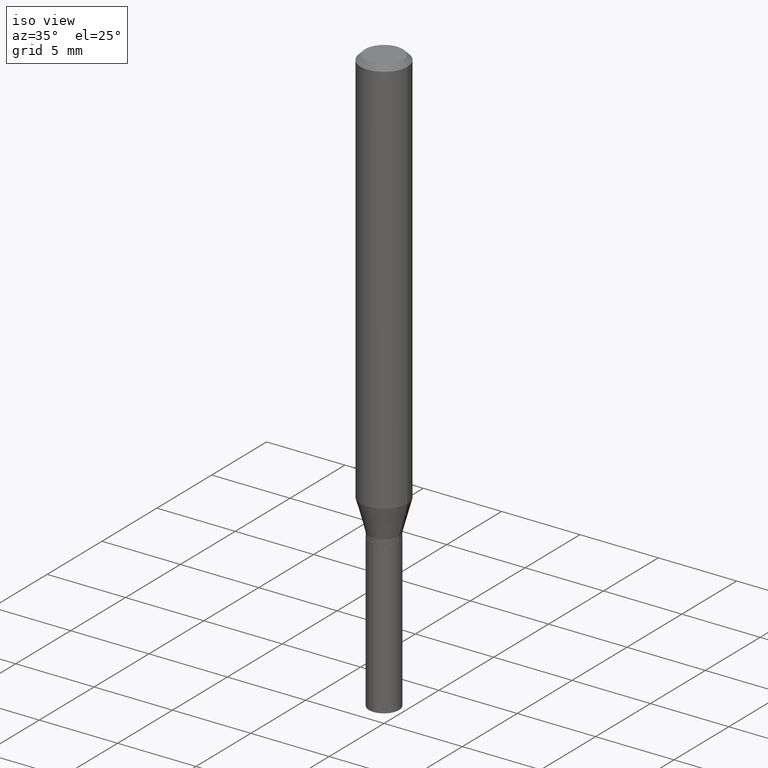
[diagram: clean part render]
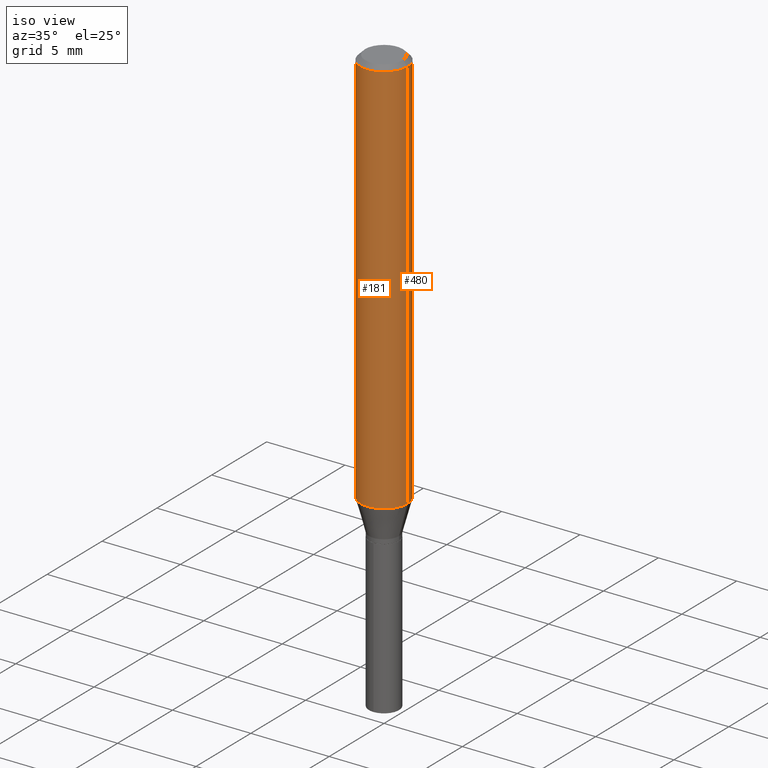
[diagram: same view with one multi-face feature highlighted, each face labeled with its STEP entity id]
A machine part, iso view. The highlighted faces form ONE feature: a constant-radius fillet chain: 2 tangent blend faces with common blend radius 1.4999 mm. The faces share edges in the B-rep.
Their STEP definitions:
[1] entity #480 (Cylinder):
#29 = CYLINDRICAL_SURFACE ( 'NONE', #275, 0.05905000000000006077 ) ;
#53 = DIRECTION ( 'NONE',  ( -2.445468806185136597E-29, 3.491481338843145583E-15, 1.000000000000000000 ) ) ;
#64 = EDGE_CURVE ( 'NONE', #287, #313, #487, .T. ) ;
#74 = CARTESIAN_POINT ( 'NONE',  ( 0.05904999999999999832, -4.535783407291118600E-16, -0.01181000000000007044 ) ) ;
#76 = DIRECTION ( 'NONE',  ( -2.445468806185136877E-29, 3.491481338843145188E-15, 1.000000000000000000 ) ) ;
#87 = EDGE_LOOP ( 'NONE', ( #485, #150, #464, #123 ) ) ;
#123 = ORIENTED_EDGE ( 'NONE', *, *, #284, .F. ) ;
#150 = ORIENTED_EDGE ( 'NONE', *, *, #64, .T. ) ;
#164 = DIRECTION ( 'NONE',  ( -2.445468806185136597E-29, 3.491481338843145583E-15, 1.000000000000000000 ) ) ;
#184 = DIRECTION ( 'NONE',  ( -2.445468806185136877E-29, 3.491481338843145188E-15, 1.000000000000000000 ) ) ;
#195 = CIRCLE ( 'NONE', #385, 0.05904999999999999832 ) ;
#224 = CARTESIAN_POINT ( 'NONE',  ( -0.05905000000000006077, 4.195754854663395916E-16, -2.904631170795524694E-30 ) ) ;
#232 = CARTESIAN_POINT ( 'NONE',  ( 2.888098660104663766E-31, -4.123439461173779647E-17, -0.01181000000000007044 ) ) ;
#234 = EDGE_CURVE ( 'NONE', #302, #313, #195, .T. ) ;
#243 = CARTESIAN_POINT ( 'NONE',  ( -0.05904999999999999832, -1.353580156360662560E-15, -0.01181000000000007044 ) ) ;
#275 = AXIS2_PLACEMENT_3D ( 'NONE', #475, #401, #314 ) ;
#283 = VERTEX_POINT ( 'NONE', #476 ) ;
#284 = EDGE_CURVE ( 'NONE', #283, #302, #398, .T. ) ;
#285 = CARTESIAN_POINT ( 'NONE',  ( -0.05905000000000011628, -3.085501403575928068E-15, -1.003893920339161028 ) ) ;
#287 = VERTEX_POINT ( 'NONE', #285 ) ;
#302 = VERTEX_POINT ( 'NONE', #74 ) ;
#310 = FACE_OUTER_BOUND ( 'NONE', #87, .T. ) ;
#313 = VERTEX_POINT ( 'NONE', #243 ) ;
#314 = DIRECTION ( 'NONE',  ( 1.000000000000000000, -6.982962677686266711E-15, 4.876176775795935793E-29 ) ) ;
#346 = DIRECTION ( 'NONE',  ( 1.000000000000000000, -6.982962677686266711E-15, 0.000000000000000000 ) ) ;
#380 = CARTESIAN_POINT ( 'NONE',  ( 2.454991266908324597E-29, -3.505076889042267956E-15, -1.003893920339161028 ) ) ;
#385 = AXIS2_PLACEMENT_3D ( 'NONE', #232, #164, #397 ) ;
#397 = DIRECTION ( 'NONE',  ( 1.000000000000000000, -6.982962677686266711E-15, 0.000000000000000000 ) ) ;
#398 = LINE ( 'NONE', #486, #434 ) ;
#401 = DIRECTION ( 'NONE',  ( -2.445468806185136597E-29, 3.491481338843145583E-15, 1.000000000000000000 ) ) ;
#434 = VECTOR ( 'NONE', #184, 39.37007874015748143 ) ;
#436 = AXIS2_PLACEMENT_3D ( 'NONE', #380, #53, #346 ) ;
#448 = EDGE_CURVE ( 'NONE', #283, #287, #472, .T. ) ;
#464 = ORIENTED_EDGE ( 'NONE', *, *, #234, .F. ) ;
#472 = CIRCLE ( 'NONE', #436, 0.05905000000000011628 ) ;
#475 = CARTESIAN_POINT ( 'NONE',  ( 0.000000000000000000, 0.000000000000000000, 0.000000000000000000 ) ) ;
#476 = CARTESIAN_POINT ( 'NONE',  ( 0.05905000000000011628, -3.917420835159643665E-15, -1.003893920339161028 ) ) ;
#480 = ADVANCED_FACE ( 'NONE', ( #310 ), #29, .T. ) ;
#485 = ORIENTED_EDGE ( 'NONE', *, *, #448, .T. ) ;
#486 = CARTESIAN_POINT ( 'NONE',  ( 0.05905000000000006077, -4.123439461173744764E-16, 2.879382386107503023E-30 ) ) ;
#487 = LINE ( 'NONE', #224, #490 ) ;
#490 = VECTOR ( 'NONE', #76, 39.37007874015748143 ) ;
[2] entity #181 (Cylinder):
#23 = CIRCLE ( 'NONE', #127, 0.05904999999999999832 ) ;
#51 = DIRECTION ( 'NONE',  ( 1.000000000000000000, -6.982962677686266711E-15, 0.000000000000000000 ) ) ;
#60 = CIRCLE ( 'NONE', #455, 0.05905000000000011628 ) ;
#64 = EDGE_CURVE ( 'NONE', #287, #313, #487, .T. ) ;
#71 = AXIS2_PLACEMENT_3D ( 'NONE', #260, #84, #381 ) ;
#74 = CARTESIAN_POINT ( 'NONE',  ( 0.05904999999999999832, -4.535783407291118600E-16, -0.01181000000000007044 ) ) ;
#76 = DIRECTION ( 'NONE',  ( -2.445468806185136877E-29, 3.491481338843145188E-15, 1.000000000000000000 ) ) ;
#84 = DIRECTION ( 'NONE',  ( -2.445468806185136597E-29, 3.491481338843145583E-15, 1.000000000000000000 ) ) ;
#111 = DIRECTION ( 'NONE',  ( 1.000000000000000000, -6.982962677686266711E-15, 0.000000000000000000 ) ) ;
#127 = AXIS2_PLACEMENT_3D ( 'NONE', #378, #286, #51 ) ;
#133 = EDGE_CURVE ( 'NONE', #313, #302, #23, .T. ) ;
#148 = CARTESIAN_POINT ( 'NONE',  ( 2.454991266908324597E-29, -3.505076889042267956E-15, -1.003893920339161028 ) ) ;
#176 = ORIENTED_EDGE ( 'NONE', *, *, #294, .T. ) ;
#181 = ADVANCED_FACE ( 'NONE', ( #458 ), #336, .T. ) ;
#184 = DIRECTION ( 'NONE',  ( -2.445468806185136877E-29, 3.491481338843145188E-15, 1.000000000000000000 ) ) ;
#224 = CARTESIAN_POINT ( 'NONE',  ( -0.05905000000000006077, 4.195754854663395916E-16, -2.904631170795524694E-30 ) ) ;
#243 = CARTESIAN_POINT ( 'NONE',  ( -0.05904999999999999832, -1.353580156360662560E-15, -0.01181000000000007044 ) ) ;
#260 = CARTESIAN_POINT ( 'NONE',  ( 0.000000000000000000, 0.000000000000000000, 0.000000000000000000 ) ) ;
#283 = VERTEX_POINT ( 'NONE', #476 ) ;
#284 = EDGE_CURVE ( 'NONE', #283, #302, #398, .T. ) ;
#285 = CARTESIAN_POINT ( 'NONE',  ( -0.05905000000000011628, -3.085501403575928068E-15, -1.003893920339161028 ) ) ;
#286 = DIRECTION ( 'NONE',  ( -2.445468806185136597E-29, 3.491481338843145583E-15, 1.000000000000000000 ) ) ;
#287 = VERTEX_POINT ( 'NONE', #285 ) ;
#294 = EDGE_CURVE ( 'NONE', #287, #283, #60, .T. ) ;
#302 = VERTEX_POINT ( 'NONE', #74 ) ;
#313 = VERTEX_POINT ( 'NONE', #243 ) ;
#336 = CYLINDRICAL_SURFACE ( 'NONE', #71, 0.05905000000000006077 ) ;
#337 = ORIENTED_EDGE ( 'NONE', *, *, #64, .F. ) ;
#357 = EDGE_LOOP ( 'NONE', ( #337, #176, #444, #407 ) ) ;
#378 = CARTESIAN_POINT ( 'NONE',  ( 2.888098660104663766E-31, -4.123439461173779647E-17, -0.01181000000000007044 ) ) ;
#381 = DIRECTION ( 'NONE',  ( 1.000000000000000000, -6.982962677686266711E-15, 4.876176775795935793E-29 ) ) ;
#398 = LINE ( 'NONE', #486, #434 ) ;
#407 = ORIENTED_EDGE ( 'NONE', *, *, #133, .F. ) ;
#434 = VECTOR ( 'NONE', #184, 39.37007874015748143 ) ;
#444 = ORIENTED_EDGE ( 'NONE', *, *, #284, .T. ) ;
#455 = AXIS2_PLACEMENT_3D ( 'NONE', #148, #484, #111 ) ;
#458 = FACE_OUTER_BOUND ( 'NONE', #357, .T. ) ;
#476 = CARTESIAN_POINT ( 'NONE',  ( 0.05905000000000011628, -3.917420835159643665E-15, -1.003893920339161028 ) ) ;
#484 = DIRECTION ( 'NONE',  ( -2.445468806185136597E-29, 3.491481338843145583E-15, 1.000000000000000000 ) ) ;
#486 = CARTESIAN_POINT ( 'NONE',  ( 0.05905000000000006077, -4.123439461173744764E-16, 2.879382386107503023E-30 ) ) ;
#487 = LINE ( 'NONE', #224, #490 ) ;
#490 = VECTOR ( 'NONE', #76, 39.37007874015748143 ) ;